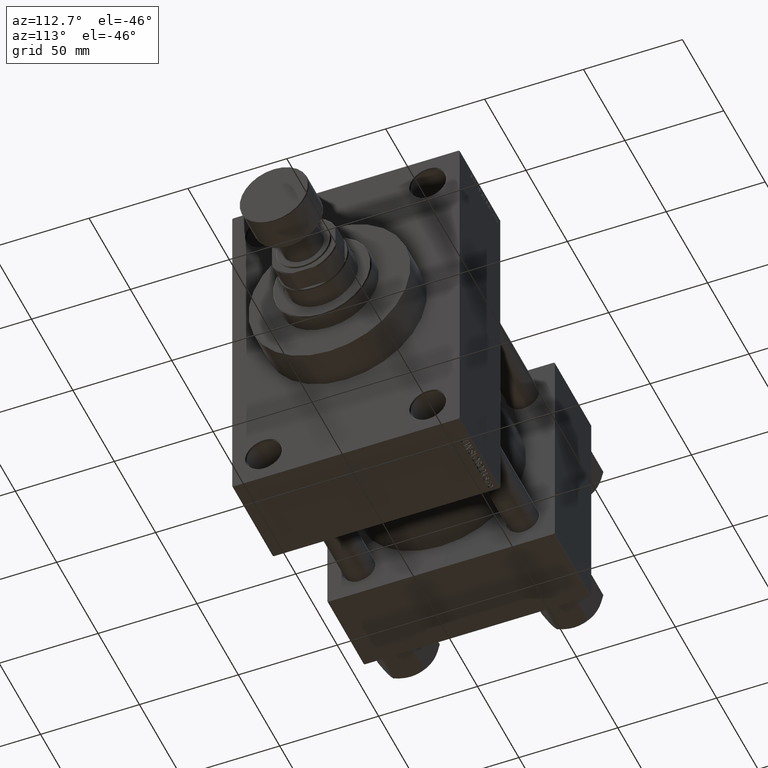
[diagram: clean part render]
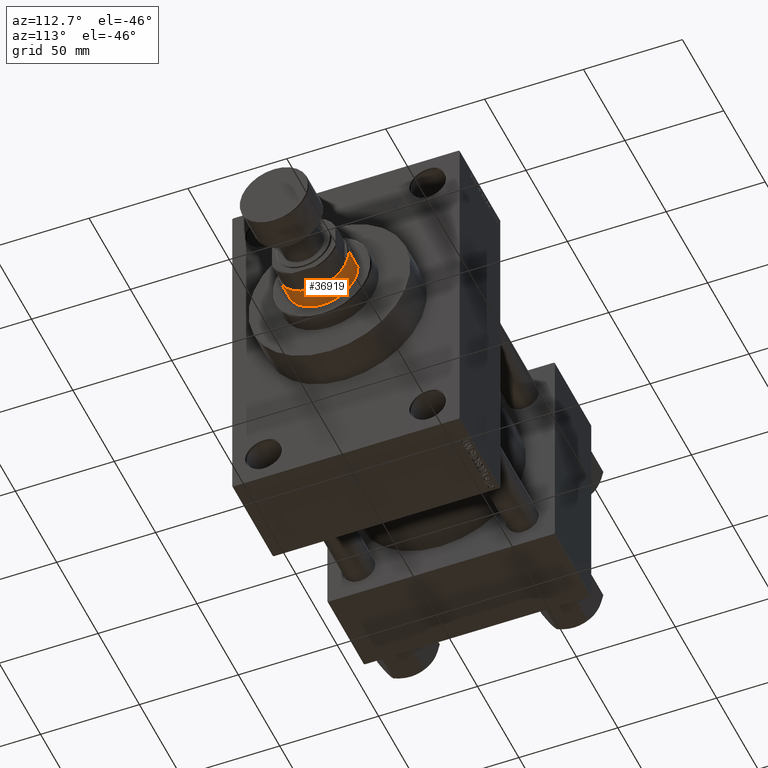
[diagram: same view with one face highlighted and labeled with its STEP entity id]
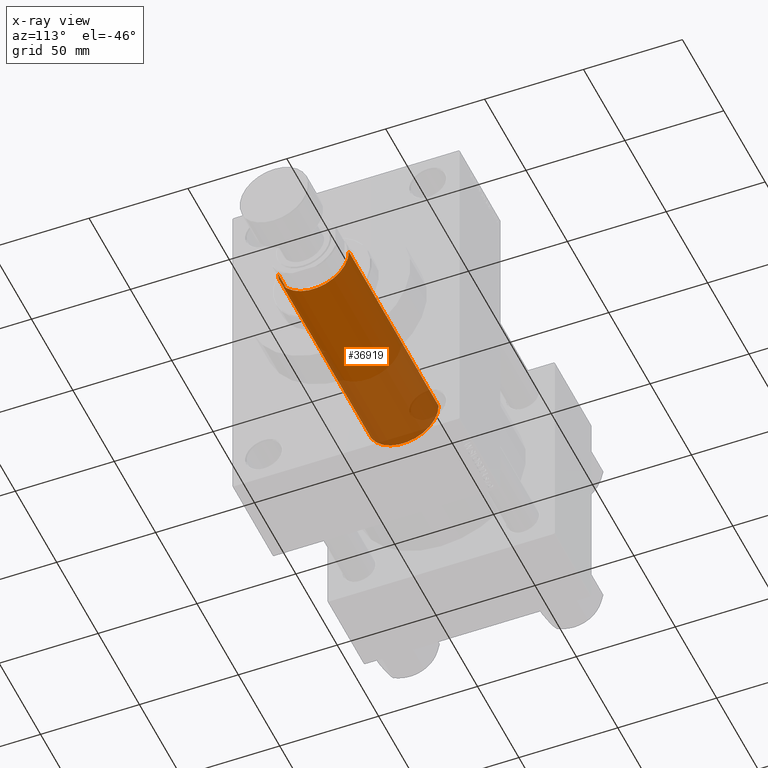
[diagram: x-ray of the same camera — body ghosted, the highlighted face saturated]
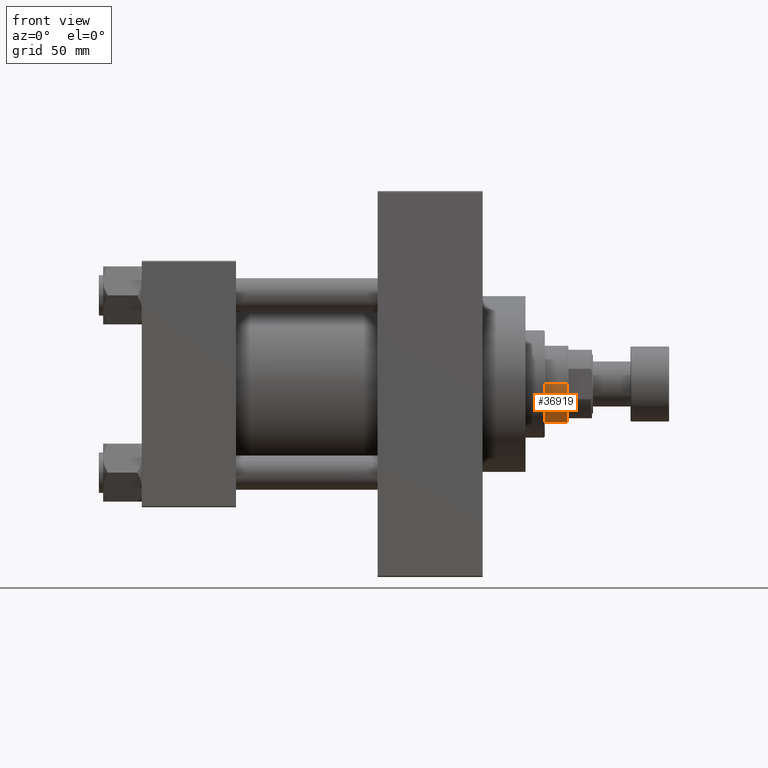
[diagram: same view with one face highlighted and labeled with its STEP entity id]
A machine part, auxiliary view. The second image highlights one B-rep face of the part: STEP entity #36919.
The next image is the same camera in x-ray: the body ghosted, the highlighted face saturated — about 43% of this face is hidden behind the body in this view.
A second angle (front view) of the same face is appended — the face is thin or edge-on in the first view.
In plain terms, the highlighted cylindrical surface (partial cylindrical patch) has radius 18 mm, axis along (-1, 0, 0).
Its self-contained STEP definition (entity closure, byte-faithful):
#1320 = AXIS2_PLACEMENT_3D ( 'NONE', #46470, #19727, #38688 ) ;
#2984 = VECTOR ( 'NONE', #5812, 1000.000000000000000 ) ;
#3728 = EDGE_CURVE ( 'NONE', #44194, #43171, #13924, .T. ) ;
#5812 = DIRECTION ( 'NONE',  ( -0.000000000000000000, -0.000000000000000000, -1.000000000000000000 ) ) ;
#6062 = CARTESIAN_POINT ( 'NONE',  ( -18.00000000000000000, 0.000000000000000000, 46.00000000000000000 ) ) ;
#6287 = CARTESIAN_POINT ( 'NONE',  ( 18.00000000000000000, 2.204364238465235428E-15, 155.0000000000000000 ) ) ;
#6496 = CARTESIAN_POINT ( 'NONE',  ( -18.00000000000000000, 0.000000000000000000, 154.4999999999999716 ) ) ;
#6867 = VERTEX_POINT ( 'NONE', #6496 ) ;
#10011 = DIRECTION ( 'NONE',  ( 0.000000000000000000, 0.000000000000000000, 1.000000000000000000 ) ) ;
#10456 = DIRECTION ( 'NONE',  ( -0.000000000000000000, -0.000000000000000000, -1.000000000000000000 ) ) ;
#13924 = CIRCLE ( 'NONE', #44138, 18.00000000000000000 ) ;
#17308 = ORIENTED_EDGE ( 'NONE', *, *, #46756, .T. ) ;
#17958 = EDGE_CURVE ( 'NONE', #6867, #43171, #25779, .T. ) ;
#18238 = CARTESIAN_POINT ( 'NONE',  ( -18.00000000000000000, 0.000000000000000000, 155.0000000000000000 ) ) ;
#19727 = DIRECTION ( 'NONE',  ( 0.000000000000000000, 0.000000000000000000, -1.000000000000000000 ) ) ;
#20259 = CARTESIAN_POINT ( 'NONE',  ( 0.000000000000000000, 0.000000000000000000, 46.00000000000000000 ) ) ;
#23597 = VERTEX_POINT ( 'NONE', #38903 ) ;
#23924 = DIRECTION ( 'NONE',  ( -1.000000000000000000, 0.000000000000000000, 0.000000000000000000 ) ) ;
#24655 = CIRCLE ( 'NONE', #1320, 18.00000000000000000 ) ;
#25019 = VECTOR ( 'NONE', #10456, 1000.000000000000000 ) ;
#25779 = LINE ( 'NONE', #18238, #25019 ) ;
#27095 = FACE_OUTER_BOUND ( 'NONE', #27560, .T. ) ;
#27560 = EDGE_LOOP ( 'NONE', ( #44687, #17308, #47665, #39733 ) ) ;
#27570 = CARTESIAN_POINT ( 'NONE',  ( 0.000000000000000000, 0.000000000000000000, 155.0000000000000000 ) ) ;
#28026 = DIRECTION ( 'NONE',  ( 1.000000000000000000, 0.000000000000000000, 0.000000000000000000 ) ) ;
#32021 = CARTESIAN_POINT ( 'NONE',  ( 18.00000000000000000, 2.204364238465235428E-15, 46.00000000000000000 ) ) ;
#34423 = CYLINDRICAL_SURFACE ( 'NONE', #42434, 18.00000000000000000 ) ;
#36919 = ADVANCED_FACE ( 'NONE', ( #27095 ), #34423, .T. ) ;
#38437 = LINE ( 'NONE', #6287, #2984 ) ;
#38688 = DIRECTION ( 'NONE',  ( 1.000000000000000000, 0.000000000000000000, 0.000000000000000000 ) ) ;
#38903 = CARTESIAN_POINT ( 'NONE',  ( 18.00000000000000000, 2.204364238465235428E-15, 154.4999999999999716 ) ) ;
#39017 = DIRECTION ( 'NONE',  ( -0.000000000000000000, -0.000000000000000000, -1.000000000000000000 ) ) ;
#39733 = ORIENTED_EDGE ( 'NONE', *, *, #17958, .F. ) ;
#42434 = AXIS2_PLACEMENT_3D ( 'NONE', #27570, #39017, #23924 ) ;
#42876 = EDGE_CURVE ( 'NONE', #6867, #23597, #24655, .T. ) ;
#43171 = VERTEX_POINT ( 'NONE', #6062 ) ;
#44138 = AXIS2_PLACEMENT_3D ( 'NONE', #20259, #10011, #28026 ) ;
#44194 = VERTEX_POINT ( 'NONE', #32021 ) ;
#44687 = ORIENTED_EDGE ( 'NONE', *, *, #42876, .T. ) ;
#46470 = CARTESIAN_POINT ( 'NONE',  ( 0.000000000000000000, 0.000000000000000000, 154.4999999999999716 ) ) ;
#46756 = EDGE_CURVE ( 'NONE', #23597, #44194, #38437, .T. ) ;
#47665 = ORIENTED_EDGE ( 'NONE', *, *, #3728, .T. ) ;